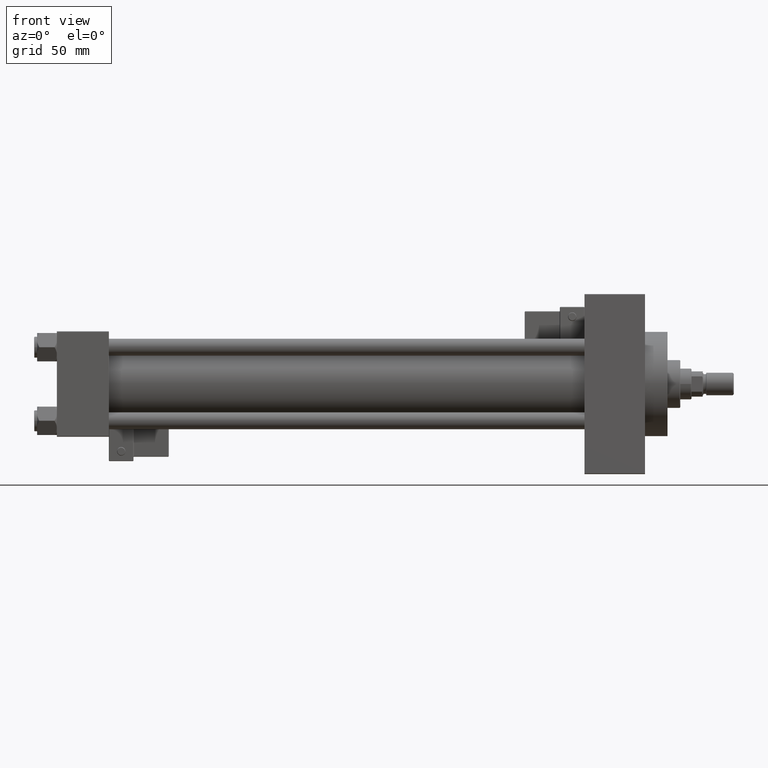
[diagram: clean part render]
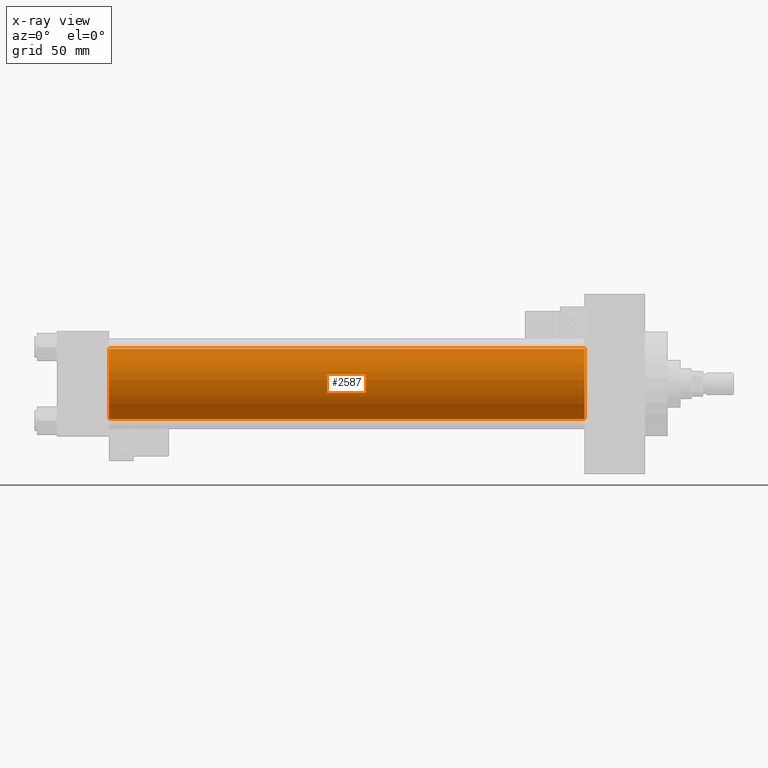
[diagram: x-ray — body ghosted, one internal face saturated and labeled with its STEP entity id]
A machine part, front view, then the same camera in x-ray: the body is ghosted and one INTERNAL B-rep face — a face not visible from any outside direction — is saturated and labeled: STEP entity #2587.
In plain terms, the highlighted cylindrical surface (edge-blend (fillet) strip) has radius 25 mm, axis along (-1, -0, -0).
Its self-contained STEP definition (entity closure, byte-faithful):
#2387 = VECTOR ( 'NONE', #39448, 1000.000000000000000 ) ;
#2587 = ADVANCED_FACE ( 'NONE', ( #20897 ), #36913, .F. ) ;
#5201 = VERTEX_POINT ( 'NONE', #42323 ) ;
#7469 = CIRCLE ( 'NONE', #9177, 25.00000000000000000 ) ;
#8455 = CIRCLE ( 'NONE', #37811, 25.00000000000000000 ) ;
#9177 = AXIS2_PLACEMENT_3D ( 'NONE', #15457, #48050, #11531 ) ;
#9247 = EDGE_CURVE ( 'NONE', #47466, #19144, #28127, .T. ) ;
#10024 = CARTESIAN_POINT ( 'NONE',  ( 37.00000000000000000, -2.602085213965210642E-15, 0.000000000000000000 ) ) ;
#11173 = DIRECTION ( 'NONE',  ( -1.000000000000000000, -0.000000000000000000, -0.000000000000000000 ) ) ;
#11531 = DIRECTION ( 'NONE',  ( 0.000000000000000000, 0.000000000000000000, -1.000000000000000000 ) ) ;
#13020 = CARTESIAN_POINT ( 'NONE',  ( 375.0000000000000000, -2.602085213965210642E-15, 0.000000000000000000 ) ) ;
#14115 = EDGE_LOOP ( 'NONE', ( #28546, #48641, #36283, #47078 ) ) ;
#15457 = CARTESIAN_POINT ( 'NONE',  ( 375.0000000000000000, -2.602085213965210642E-15, 0.000000000000000000 ) ) ;
#17645 = CARTESIAN_POINT ( 'NONE',  ( 375.0000000000000000, -2.602085213965210642E-15, 25.00000000000000000 ) ) ;
#19144 = VERTEX_POINT ( 'NONE', #22743 ) ;
#20177 = VECTOR ( 'NONE', #11173, 1000.000000000000000 ) ;
#20791 = CARTESIAN_POINT ( 'NONE',  ( 375.0000000000000000, 4.595317839031724996E-16, -25.00000000000000000 ) ) ;
#20897 = FACE_OUTER_BOUND ( 'NONE', #14115, .T. ) ;
#22743 = CARTESIAN_POINT ( 'NONE',  ( 37.00000000000000000, 4.595317839031724996E-16, -25.00000000000000000 ) ) ;
#25789 = AXIS2_PLACEMENT_3D ( 'NONE', #13020, #46376, #42423 ) ;
#26291 = DIRECTION ( 'NONE',  ( 0.000000000000000000, 0.000000000000000000, -1.000000000000000000 ) ) ;
#28127 = LINE ( 'NONE', #36021, #2387 ) ;
#28546 = ORIENTED_EDGE ( 'NONE', *, *, #40021, .T. ) ;
#31102 = CARTESIAN_POINT ( 'NONE',  ( 375.0000000000000000, -2.602085213965210642E-15, 25.00000000000000000 ) ) ;
#33654 = DIRECTION ( 'NONE',  ( 1.000000000000000000, 0.000000000000000000, 0.000000000000000000 ) ) ;
#36021 = CARTESIAN_POINT ( 'NONE',  ( 375.0000000000000000, 4.595317839031724996E-16, -25.00000000000000000 ) ) ;
#36283 = ORIENTED_EDGE ( 'NONE', *, *, #42891, .F. ) ;
#36913 = CYLINDRICAL_SURFACE ( 'NONE', #25789, 25.00000000000000000 ) ;
#37637 = VERTEX_POINT ( 'NONE', #17645 ) ;
#37811 = AXIS2_PLACEMENT_3D ( 'NONE', #10024, #33654, #26291 ) ;
#39448 = DIRECTION ( 'NONE',  ( -1.000000000000000000, -0.000000000000000000, -0.000000000000000000 ) ) ;
#40021 = EDGE_CURVE ( 'NONE', #37637, #47466, #7469, .T. ) ;
#42191 = EDGE_CURVE ( 'NONE', #37637, #5201, #51893, .T. ) ;
#42323 = CARTESIAN_POINT ( 'NONE',  ( 37.00000000000000000, -2.602085213965210642E-15, 25.00000000000000000 ) ) ;
#42423 = DIRECTION ( 'NONE',  ( 0.000000000000000000, 0.000000000000000000, 1.000000000000000000 ) ) ;
#42891 = EDGE_CURVE ( 'NONE', #5201, #19144, #8455, .T. ) ;
#46376 = DIRECTION ( 'NONE',  ( -1.000000000000000000, -0.000000000000000000, -0.000000000000000000 ) ) ;
#47078 = ORIENTED_EDGE ( 'NONE', *, *, #42191, .F. ) ;
#47466 = VERTEX_POINT ( 'NONE', #20791 ) ;
#48050 = DIRECTION ( 'NONE',  ( 1.000000000000000000, 0.000000000000000000, 0.000000000000000000 ) ) ;
#48641 = ORIENTED_EDGE ( 'NONE', *, *, #9247, .T. ) ;
#51893 = LINE ( 'NONE', #31102, #20177 ) ;